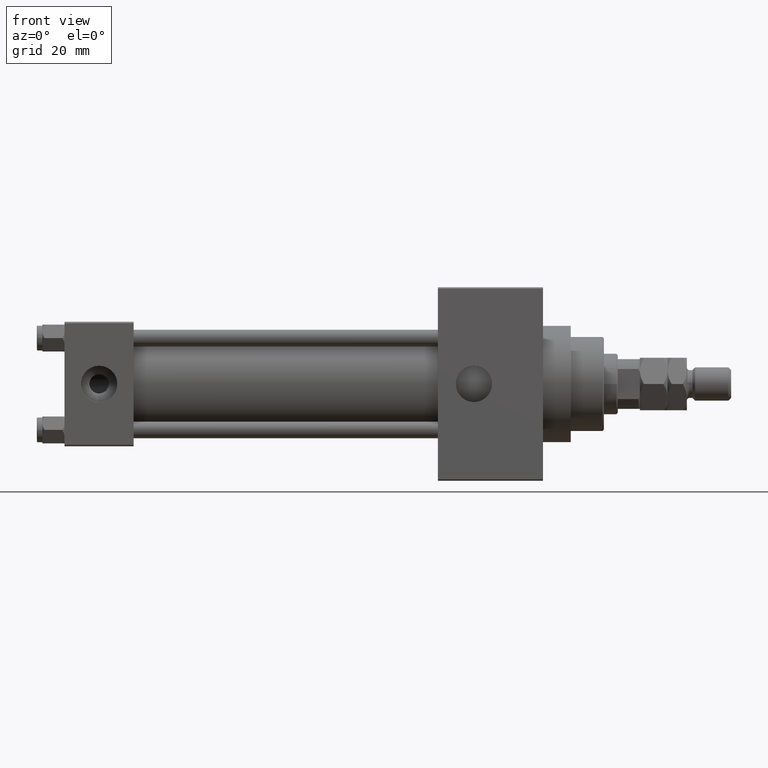
[diagram: clean part render]
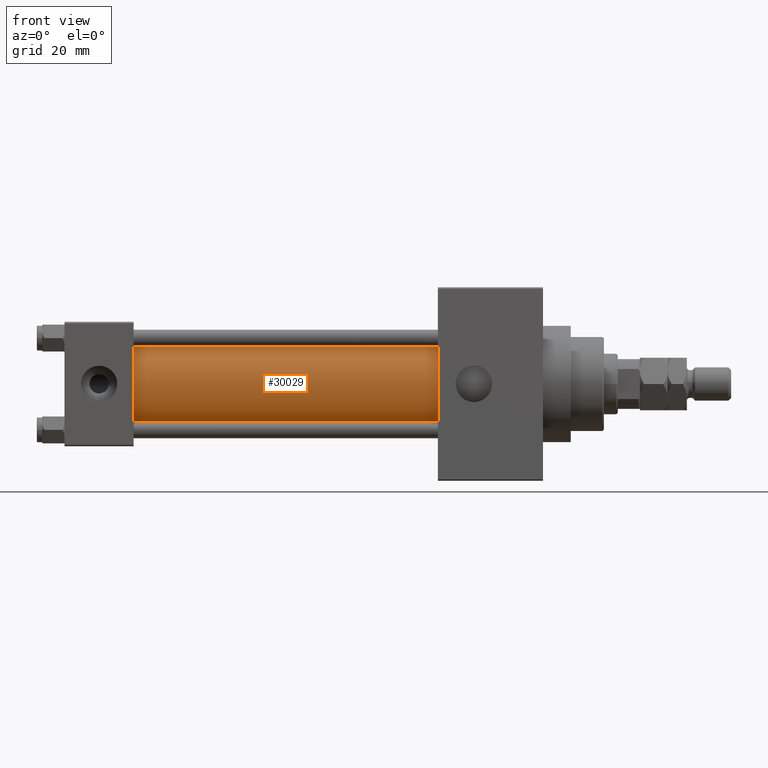
[diagram: same view with one face highlighted and labeled with its STEP entity id]
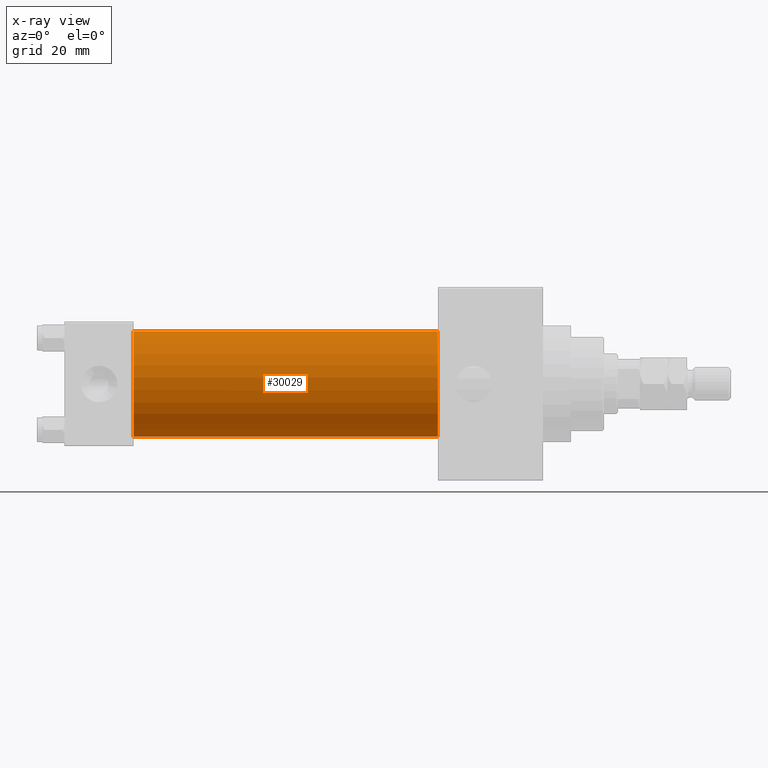
[diagram: x-ray of the same camera — body ghosted, the highlighted face saturated]
A machine part, front view. The second image highlights one B-rep face of the part: STEP entity #30029.
The next image is the same camera in x-ray: the body ghosted, the highlighted face saturated — about 0% of this face is hidden behind the body in this view.
In plain terms, the highlighted cylindrical surface (partial cylindrical patch) has radius 19 mm, axis along (-1, -0, -0).
Its self-contained STEP definition (entity closure, byte-faithful):
#508 = DIRECTION ( 'NONE',  ( 0.000000000000000000, 0.000000000000000000, 1.000000000000000000 ) ) ;
#933 = EDGE_LOOP ( 'NONE', ( #47996, #6878, #40512, #15765 ) ) ;
#1441 = VECTOR ( 'NONE', #36238, 1000.000000000000000 ) ;
#2594 = AXIS2_PLACEMENT_3D ( 'NONE', #18120, #48164, #17639 ) ;
#2741 = CARTESIAN_POINT ( 'NONE',  ( 135.0000000000000000, -2.752562955852396712E-16, -19.00000000000000000 ) ) ;
#3117 = CYLINDRICAL_SURFACE ( 'NONE', #2594, 19.00000000000000000 ) ;
#4595 = CARTESIAN_POINT ( 'NONE',  ( 135.0000000000000000, -2.602085213965210642E-15, 0.000000000000000000 ) ) ;
#5431 = CARTESIAN_POINT ( 'NONE',  ( 135.0000000000000000, -2.752562955852396712E-16, -19.00000000000000000 ) ) ;
#5461 = VERTEX_POINT ( 'NONE', #22599 ) ;
#6529 = CIRCLE ( 'NONE', #34022, 19.00000000000000000 ) ;
#6878 = ORIENTED_EDGE ( 'NONE', *, *, #32368, .F. ) ;
#7164 = VERTEX_POINT ( 'NONE', #14038 ) ;
#10258 = FACE_OUTER_BOUND ( 'NONE', #933, .T. ) ;
#12883 = EDGE_CURVE ( 'NONE', #13171, #7164, #22409, .T. ) ;
#13171 = VERTEX_POINT ( 'NONE', #5431 ) ;
#14038 = CARTESIAN_POINT ( 'NONE',  ( 24.99999999999999289, -2.752562955852396712E-16, -19.00000000000000000 ) ) ;
#15765 = ORIENTED_EDGE ( 'NONE', *, *, #30682, .T. ) ;
#16190 = EDGE_CURVE ( 'NONE', #5461, #41437, #29083, .T. ) ;
#17639 = DIRECTION ( 'NONE',  ( 0.000000000000000000, 0.000000000000000000, 1.000000000000000000 ) ) ;
#18120 = CARTESIAN_POINT ( 'NONE',  ( 135.0000000000000000, -2.602085213965210642E-15, 0.000000000000000000 ) ) ;
#18480 = DIRECTION ( 'NONE',  ( -1.000000000000000000, -0.000000000000000000, -0.000000000000000000 ) ) ;
#18974 = DIRECTION ( 'NONE',  ( 1.000000000000000000, -0.000000000000000000, 0.000000000000000000 ) ) ;
#21227 = CARTESIAN_POINT ( 'NONE',  ( 135.0000000000000000, -2.602085213965210642E-15, 19.00000000000000000 ) ) ;
#22409 = LINE ( 'NONE', #2741, #46159 ) ;
#22599 = CARTESIAN_POINT ( 'NONE',  ( 135.0000000000000000, -2.602085213965210642E-15, 19.00000000000000000 ) ) ;
#23098 = AXIS2_PLACEMENT_3D ( 'NONE', #4595, #27222, #23281 ) ;
#23281 = DIRECTION ( 'NONE',  ( 0.000000000000000000, 0.000000000000000000, -1.000000000000000000 ) ) ;
#26720 = CARTESIAN_POINT ( 'NONE',  ( 24.99999999999999289, -2.602085213965210642E-15, 19.00000000000000000 ) ) ;
#27222 = DIRECTION ( 'NONE',  ( 1.000000000000000000, 0.000000000000000000, 0.000000000000000000 ) ) ;
#29083 = LINE ( 'NONE', #21227, #1441 ) ;
#30029 = ADVANCED_FACE ( 'NONE', ( #10258 ), #3117, .T. ) ;
#30682 = EDGE_CURVE ( 'NONE', #41437, #7164, #6529, .T. ) ;
#32368 = EDGE_CURVE ( 'NONE', #5461, #13171, #42756, .T. ) ;
#34022 = AXIS2_PLACEMENT_3D ( 'NONE', #37925, #18974, #508 ) ;
#36238 = DIRECTION ( 'NONE',  ( -1.000000000000000000, -0.000000000000000000, -0.000000000000000000 ) ) ;
#37925 = CARTESIAN_POINT ( 'NONE',  ( 24.99999999999999289, -2.602085213965210642E-15, 0.000000000000000000 ) ) ;
#40512 = ORIENTED_EDGE ( 'NONE', *, *, #16190, .T. ) ;
#41437 = VERTEX_POINT ( 'NONE', #26720 ) ;
#42756 = CIRCLE ( 'NONE', #23098, 19.00000000000000000 ) ;
#46159 = VECTOR ( 'NONE', #18480, 1000.000000000000000 ) ;
#47996 = ORIENTED_EDGE ( 'NONE', *, *, #12883, .F. ) ;
#48164 = DIRECTION ( 'NONE',  ( -1.000000000000000000, -0.000000000000000000, -0.000000000000000000 ) ) ;